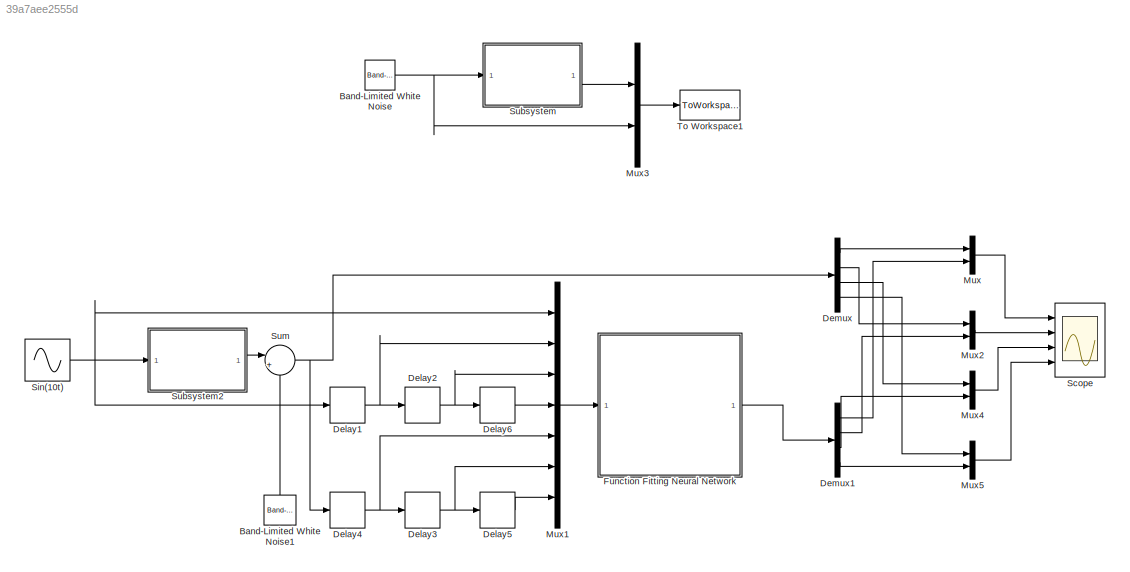
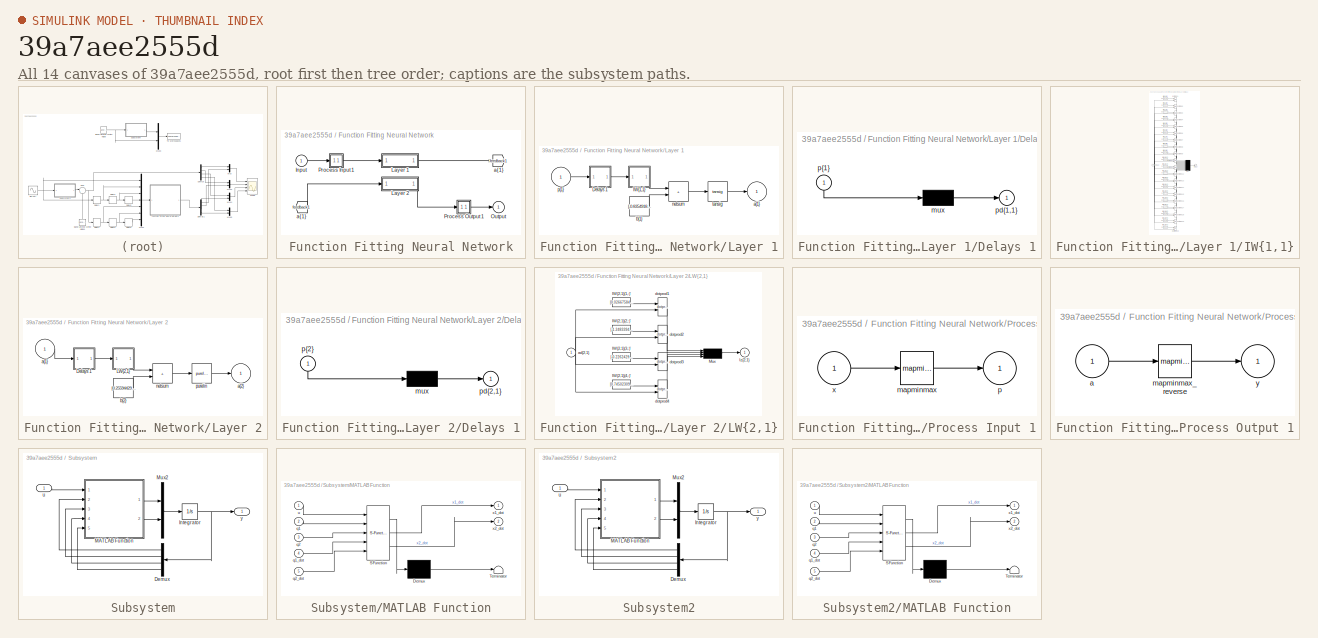
[diagram: thumbnail index - all 14 canvases of the model, root first then tree order]
MODEL slx_39a7aee2555d
KIND model
CONFIG AbsTol = auto
CONFIG EnableMultiTasking = off
CONFIG FixedStep = 0
CONFIG MaxStep = auto
CONFIG MinStep = auto
CONFIG RelTol = 1e-3
CONFIG SampleTimeConstraint = Unconstrained
CONFIG SolverName = VariableStepAuto
CONFIG StartTime = 0.0
CONFIG StopTime = 10
BLOCK [Reference] Band-Limited White Noise  REF=simulink/Sources/Band-Limited
White Noise
  Ports = [0, 1]
  SourceBlock = simulink/Sources/Band-Limited\nWhite Noise
  SourceProductBaseCode = SL
  SourceType = Band-Limited White Noise.
BLOCK [Reference] Band-Limited White Noise1  REF=simulink/Sources/Band-Limited
White Noise
  NameLocation = right
  Ports = [0, 1]
  SourceBlock = simulink/Sources/Band-Limited\nWhite Noise
  SourceProductBaseCode = SL
  SourceType = Band-Limited White Noise.
BLOCK [Delay] Delay1
  DelayLength = 1
  InitialCondition = 0
  InputPortMap = u0
  Ports = [1, 1]
BLOCK [Delay] Delay2
  DelayLength = 1
  InitialCondition = 0
  InputPortMap = u0
  Ports = [1, 1]
BLOCK [Delay] Delay3
  DelayLength = 1
  InitialCondition = 0
  InputPortMap = u0
  Ports = [1, 1]
BLOCK [Delay] Delay4
  DelayLength = 1
  InitialCondition = 0
  InputPortMap = u0
  Ports = [1, 1]
BLOCK [Delay] Delay5
  DelayLength = 1
  InitialCondition = 0
  InputPortMap = u0
  Ports = [1, 1]
BLOCK [Delay] Delay6
  DelayLength = 1
  InitialCondition = 0
  InputPortMap = u0
  Ports = [1, 1]
BLOCK [Demux] Demux
  Ports = [1, 4]
BLOCK [Demux] Demux1
  Ports = [1, 4]
BLOCK [SubSystem] Function Fitting Neural Network
  Ports = [1, 1]
  RequestExecContextInheritance = off
BLOCK [From] Function Fitting Neural Network/ a{1} 
  GotoTag = feedback1
BLOCK [Inport] Function Fitting Neural Network/Input
  PortDimensions = 16
BLOCK [SubSystem] Function Fitting Neural Network/Layer 1
  Ports = [1, 1]
  RequestExecContextInheritance = off
BLOCK [SubSystem] Function Fitting Neural Network/Layer 1/Delays 1
  Ports = [1, 1]
  RequestExecContextInheritance = off
BLOCK [Mux] Function Fitting Neural Network/Layer 1/Delays 1/mux
  Inputs = 1
  Ports = [1, 1]
BLOCK [Outport] Function Fitting Neural Network/Layer 1/Delays 1/pd{1,1}
BLOCK [Inport] Function Fitting Neural Network/Layer 1/Delays 1/p{1}
  NameLocation = left
  PortDimensions = 16
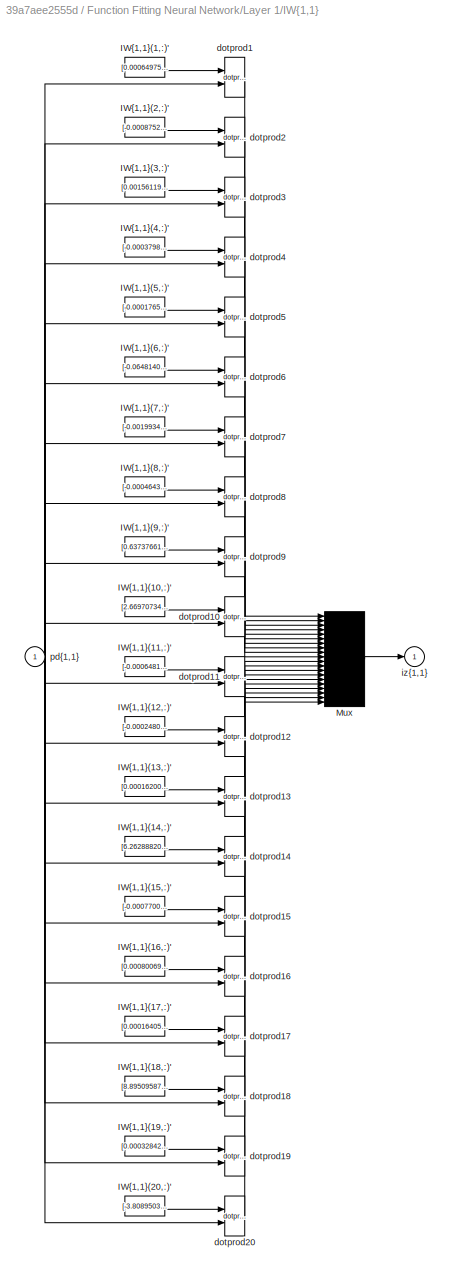
BLOCK [SubSystem] Function Fitting Neural Network/Layer 1/IW{1,1}
  Ports = [1, 1]
  RequestExecContextInheritance = off
BLOCK [Constant] Function Fitting Neural Network/Layer 1/IW{1,1}/IW{1,1}(1,:)'
  Value = [0.0006497595962778571383744452560904392157681286334991455078125;-4.14681874647082770080248892430319074264843948185443878173828125e-05;-0.000117323732129381670869806841839277922190376557409763336181640625;-0.00081712479590169829861412420513033794122748076915740966796875;0.02054128798901501407048186820247792638838291168212890625;-0.222381987091993471583606378771946765482425689697265625;-0.083519442...<+565ch>
BLOCK [Constant] Function Fitting Neural Network/Layer 1/IW{1,1}/IW{1,1}(10,:)'
  Value = [2.669707345365600827829556662695864588386029936373233795166015625e-05;6.163721756815836064040403652342092755134217441082000732421875e-05;0.00085904376332920592308772800294036642299033701419830322265625;-0.000748848611049175217659057413044365603127516806125640869140625;-0.64749101968490607728057284475653432309627532958984375;0.15628981793171414782506190022104419767856597900390625;0.413684876475788...<+554ch>
BLOCK [Constant] Function Fitting Neural Network/Layer 1/IW{1,1}/IW{1,1}(11,:)'
  Value = [-0.000648121461776643707948519779193929934990592300891876220703125;0.000318543579510111897479252007769900956191122531890869140625;0.00125256239143849818461207146214064778177998960018157958984375;-0.00020996056844432974962562366005869307628017850220203399658203125;-0.455149028189702098412539044147706590592861175537109375;0.0192023790503516693373153856327917310409247875213623046875;-0.2020906509395...<+559ch>
BLOCK [Constant] Function Fitting Neural Network/Layer 1/IW{1,1}/IW{1,1}(12,:)'
  Value = [-0.0002480378412450206355131798741098236860125325620174407958984375;-0.00020751750405047168887735786757531286639277823269367218017578125;-0.00018989495924129386737223834646925979541265405714511871337890625;0.00034571509970268113516589369993425862048752605915069580078125;-0.11481098550833705729257161465284298174083232879638671875;-0.480672832578880993015246758659486658871173858642578125;0.20050003...<+573ch>
BLOCK [Constant] Function Fitting Neural Network/Layer 1/IW{1,1}/IW{1,1}(13,:)'
  Value = [0.00016200095803150493778931051647163030793308280408382415771484375;0.0003105684530270226323574178639574938642908819019794464111328125;0.000122863321462266385057648943046615386265330016613006591796875;-0.00124550561041928786569499276737360560218803584575653076171875;-0.1692623394344288378920992954590474255383014678955078125;-0.2970496022290927129461124422959983348846435546875;-0.06714709216879935...<+557ch>
BLOCK [Constant] Function Fitting Neural Network/Layer 1/IW{1,1}/IW{1,1}(14,:)'
  Value = [6.26288820319030928827908066836016587330959737300872802734375e-05;0.0003576643112834073582988192452347675498458556830883026123046875;-5.51893240529009778132414620888113176988554187119007110595703125e-05;-8.75221609081757064008133539800837752409279346466064453125e-05;0.779963663071746804433814759249798953533172607421875;0.2936522481223595715249530258006416261196136474609375;-0.41823886804848114939...<+560ch>
BLOCK [Constant] Function Fitting Neural Network/Layer 1/IW{1,1}/IW{1,1}(15,:)'
  Value = [-0.000770044701256342926758147182653146955999545753002166748046875;-0.000121153238827784843177626239452138179331086575984954833984375;0.000962624329641622732307848497868008053046651184558868408203125;0.001924798690870832031107884318998912931419909000396728515625;1.1900904568608223765835418817005120217800140380859375;-0.1664802091736500011531774134709849022328853607177734375;-0.6876821267603886456...<+548ch>
BLOCK [Constant] Function Fitting Neural Network/Layer 1/IW{1,1}/IW{1,1}(16,:)'
  Value = [0.000800695062533548682602579926737007554038427770137786865234375;-0.00045715830620634352772502229100837212172336876392364501953125;0.0003268933807610846921203051618221024909871630370616912841796875;-5.997773816073786860326999548220783253782428801059722900390625e-05;-0.33597739810910909330488038904150016605854034423828125;0.267747073382606559643903665346442721784114837646484375;-0.576545631646478...<+559ch>
BLOCK [Constant] Function Fitting Neural Network/Layer 1/IW{1,1}/IW{1,1}(17,:)'
  Value = [0.00016405049724810857707246736225670247222296893596649169921875;-0.0003472694094526647379771178147933596846996806561946868896484375;-0.000858663939336835814637727271048106558737345039844512939453125;1.745347316646612574326906386357194378433632664382457733154296875e-05;-1.669618756525871550167039458756335079669952392578125;-0.65396558716076125250538098043762147426605224609375;1.162072557652358950...<+548ch>
BLOCK [Constant] Function Fitting Neural Network/Layer 1/IW{1,1}/IW{1,1}(18,:)'
  Value = [8.8950958795552698154564252863707451979280449450016021728515625e-05;0.00026509341560794594423733361310269174282439053058624267578125;-0.000403248729956397016470359684348068185499869287014007568359375;0.00142578383093951046971248342032367872889153659343719482421875;-1.3708659490516870160803364342427812516689300537109375;0.10422716158509580386404280716305947862565517425537109375;0.15934685237078879...<+557ch>
BLOCK [Constant] Function Fitting Neural Network/Layer 1/IW{1,1}/IW{1,1}(19,:)'
  Value = [0.000328422867463017630583477224348598610959015786647796630859375;-0.0004080776202633589204611663792121589722228236496448516845703125;-0.000170019236093398398192155784869328272179700434207916259765625;0.00015494386029386069607120812730016723435255698859691619873046875;-0.2088588702647231343245692869459162466228008270263671875;-0.55302265726755439612105647029238753020763397216796875;-0.02594666573...<+566ch>
BLOCK [Constant] Function Fitting Neural Network/Layer 1/IW{1,1}/IW{1,1}(2,:)'
  Value = [-0.000875290755914965852395315248912766037392430007457733154296875;0.0010655678861198150143840823744767476455308496952056884765625;0.002486375754704956385354730485914842574857175350189208984375;0.0028589814329637295610420100189230652176775038242340087890625;0.465150962009530155594205780289485119283199310302734375;0.0842845297424358597115912061781273223459720611572265625;0.463231932560459025438603...<+546ch>
BLOCK [Constant] Function Fitting Neural Network/Layer 1/IW{1,1}/IW{1,1}(20,:)'
  Value = [-3.80895037760419334920032607971762672605109401047229766845703125e-05;-0.000714089892746204435436396806835546158254146575927734375;0.000678670392179360850749836320261465516523458063602447509765625;-0.00141509602233738239658589197489391153794713318347930908203125;-0.033249752747824157239620035397820174694061279296875;0.051727387772988277225838515960276708938181400299072265625;-0.736224880063922837...<+550ch>
BLOCK [Constant] Function Fitting Neural Network/Layer 1/IW{1,1}/IW{1,1}(3,:)'
  Value = [0.00156119571766490518142933563439100907999090850353240966796875;0.0002498858016574074321532183962091266948846168816089630126953125;0.000627619329181742136199162462872891410370357334613800048828125;-0.0003498051026960557227489523324237552515114657580852508544921875;0.29474207246474259935808959198766387999057769775390625;-0.360346348681270856051384043894358910620212554931640625;-0.9545396083794313...<+559ch>
BLOCK [Constant] Function Fitting Neural Network/Layer 1/IW{1,1}/IW{1,1}(4,:)'
  Value = [-0.0003798337715813563633844573974585046016727574169635772705078125;-0.000249441646736257849337192737948498688638210296630859375;1.6775931835901871703488341669441297199227847158908843994140625e-05;0.0001929638547644634623441650678188352685538120567798614501953125;0.334971409197415581626700031847576610743999481201171875;0.1355361321430451349012713535557850264012813568115234375;0.122106224542132657...<+555ch>
BLOCK [Constant] Function Fitting Neural Network/Layer 1/IW{1,1}/IW{1,1}(5,:)'
  Value = [-0.00017655897202761079885224848595726143685169517993927001953125;-0.00055864550376499909171978952571180343511514365673065185546875;0.000973306377957160423312898966941020262311212718486785888671875;0.0002499754957638698348205974486546665502828545868396759033203125;0.32236641758659312362311766264610923826694488525390625;-0.345592372580953488547805818598135374486446380615234375;0.098450016815530297...<+553ch>
BLOCK [Constant] Function Fitting Neural Network/Layer 1/IW{1,1}/IW{1,1}(6,:)'
  Value = [-0.06481402597656064912268192301780800335109233856201171875;-0.004092143680449526928211145815339477849192917346954345703125;-0.0012426757535115950763227044006953292409889400005340576171875;0.03962134355508217797847692054347135126590728759765625;-0.5376738120341120197309692230192013084888458251953125;0.2078897200943762568758899078602553345263004302978515625;0.46027412491527086579878869088133797049...<+529ch>
BLOCK [Constant] Function Fitting Neural Network/Layer 1/IW{1,1}/IW{1,1}(7,:)'
  Value = [-0.0019934277716382891622315387536445996374823153018951416015625;0.001158125043902765403946997224693404859863221645355224609375;0.00075377527919244058200731739560751520912162959575653076171875;0.002584609389924420741468935602824785746634006500244140625;-0.13675443197164816044875124134705401957035064697265625;-0.2045602257931095346865646433798247016966342926025390625;-0.743161918084098260806058533...<+539ch>
BLOCK [Constant] Function Fitting Neural Network/Layer 1/IW{1,1}/IW{1,1}(8,:)'
  Value = [-0.000464315012158815487719465409099939279258251190185546875;-5.50433352576753281613052004583863663356169126927852630615234375e-05;3.54743980116722037077177376307446365899522788822650909423828125e-05;0.000599036242651901557933202813188700019964016973972320556640625;-0.1665176304098157367139521056742523796856403350830078125;0.1723296329127926018731642443526652641594409942626953125;0.11432769343818...<+575ch>
BLOCK [Constant] Function Fitting Neural Network/Layer 1/IW{1,1}/IW{1,1}(9,:)'
  Value = [0.63737661830385816674748866716981865465641021728515625;0.170284290525173409580617089886800386011600494384765625;0.279716443623468868917569807308609597384929656982421875;-0.38612799402853792418710554557037539780139923095703125;-0.25450926270260032513448322788462974131107330322265625;0.64598996345771386717871109794941730797290802001953125;-0.11904632672822124117573139301384799182415008544921875;0....<+512ch>
BLOCK [Mux] Function Fitting Neural Network/Layer 1/IW{1,1}/Mux
  Inputs = 20
  Ports = [20, 1]
BLOCK [Reference] Function Fitting Neural Network/Layer 1/IW{1,1}/dotprod1  REF=neural/Weight Functions/dotprod
  Ports = [2, 1]
  SourceBlock = neural/Weight Functions/dotprod
  SourceProductBaseCode = NN
  SourceType = DOTPROD
BLOCK [Reference] Function Fitting Neural Network/Layer 1/IW{1,1}/dotprod10  REF=neural/Weight Functions/dotprod
  Ports = [2, 1]
  SourceBlock = neural/Weight Functions/dotprod
  SourceProductBaseCode = NN
  SourceType = DOTPROD
BLOCK [Reference] Function Fitting Neural Network/Layer 1/IW{1,1}/dotprod11  REF=neural/Weight Functions/dotprod
  Ports = [2, 1]
  SourceBlock = neural/Weight Functions/dotprod
  SourceProductBaseCode = NN
  SourceType = DOTPROD
BLOCK [Reference] Function Fitting Neural Network/Layer 1/IW{1,1}/dotprod12  REF=neural/Weight Functions/dotprod
  Ports = [2, 1]
  SourceBlock = neural/Weight Functions/dotprod
  SourceProductBaseCode = NN
  SourceType = DOTPROD
BLOCK [Reference] Function Fitting Neural Network/Layer 1/IW{1,1}/dotprod13  REF=neural/Weight Functions/dotprod
  Ports = [2, 1]
  SourceBlock = neural/Weight Functions/dotprod
  SourceProductBaseCode = NN
  SourceType = DOTPROD
BLOCK [Reference] Function Fitting Neural Network/Layer 1/IW{1,1}/dotprod14  REF=neural/Weight Functions/dotprod
  Ports = [2, 1]
  SourceBlock = neural/Weight Functions/dotprod
  SourceProductBaseCode = NN
  SourceType = DOTPROD
BLOCK [Reference] Function Fitting Neural Network/Layer 1/IW{1,1}/dotprod15  REF=neural/Weight Functions/dotprod
  Ports = [2, 1]
  SourceBlock = neural/Weight Functions/dotprod
  SourceProductBaseCode = NN
  SourceType = DOTPROD
BLOCK [Reference] Function Fitting Neural Network/Layer 1/IW{1,1}/dotprod16  REF=neural/Weight Functions/dotprod
  Ports = [2, 1]
  SourceBlock = neural/Weight Functions/dotprod
  SourceProductBaseCode = NN
  SourceType = DOTPROD
BLOCK [Reference] Function Fitting Neural Network/Layer 1/IW{1,1}/dotprod17  REF=neural/Weight Functions/dotprod
  Ports = [2, 1]
  SourceBlock = neural/Weight Functions/dotprod
  SourceProductBaseCode = NN
  SourceType = DOTPROD
BLOCK [Reference] Function Fitting Neural Network/Layer 1/IW{1,1}/dotprod18  REF=neural/Weight Functions/dotprod
  Ports = [2, 1]
  SourceBlock = neural/Weight Functions/dotprod
  SourceProductBaseCode = NN
  SourceType = DOTPROD
BLOCK [Reference] Function Fitting Neural Network/Layer 1/IW{1,1}/dotprod19  REF=neural/Weight Functions/dotprod
  Ports = [2, 1]
  SourceBlock = neural/Weight Functions/dotprod
  SourceProductBaseCode = NN
  SourceType = DOTPROD
BLOCK [Reference] Function Fitting Neural Network/Layer 1/IW{1,1}/dotprod2  REF=neural/Weight Functions/dotprod
  Ports = [2, 1]
  SourceBlock = neural/Weight Functions/dotprod
  SourceProductBaseCode = NN
  SourceType = DOTPROD
BLOCK [Reference] Function Fitting Neural Network/Layer 1/IW{1,1}/dotprod20  REF=neural/Weight Functions/dotprod
  Ports = [2, 1]
  SourceBlock = neural/Weight Functions/dotprod
  SourceProductBaseCode = NN
  SourceType = DOTPROD
BLOCK [Reference] Function Fitting Neural Network/Layer 1/IW{1,1}/dotprod3  REF=neural/Weight Functions/dotprod
  Ports = [2, 1]
  SourceBlock = neural/Weight Functions/dotprod
  SourceProductBaseCode = NN
  SourceType = DOTPROD
BLOCK [Reference] Function Fitting Neural Network/Layer 1/IW{1,1}/dotprod4  REF=neural/Weight Functions/dotprod
  Ports = [2, 1]
  SourceBlock = neural/Weight Functions/dotprod
  SourceProductBaseCode = NN
  SourceType = DOTPROD
BLOCK [Reference] Function Fitting Neural Network/Layer 1/IW{1,1}/dotprod5  REF=neural/Weight Functions/dotprod
  Ports = [2, 1]
  SourceBlock = neural/Weight Functions/dotprod
  SourceProductBaseCode = NN
  SourceType = DOTPROD
BLOCK [Reference] Function Fitting Neural Network/Layer 1/IW{1,1}/dotprod6  REF=neural/Weight Functions/dotprod
  Ports = [2, 1]
  SourceBlock = neural/Weight Functions/dotprod
  SourceProductBaseCode = NN
  SourceType = DOTPROD
BLOCK [Reference] Function Fitting Neural Network/Layer 1/IW{1,1}/dotprod7  REF=neural/Weight Functions/dotprod
  Ports = [2, 1]
  SourceBlock = neural/Weight Functions/dotprod
  SourceProductBaseCode = NN
  SourceType = DOTPROD
BLOCK [Reference] Function Fitting Neural Network/Layer 1/IW{1,1}/dotprod8  REF=neural/Weight Functions/dotprod
  Ports = [2, 1]
  SourceBlock = neural/Weight Functions/dotprod
  SourceProductBaseCode = NN
  SourceType = DOTPROD
BLOCK [Reference] Function Fitting Neural Network/Layer 1/IW{1,1}/dotprod9  REF=neural/Weight Functions/dotprod
  Ports = [2, 1]
  SourceBlock = neural/Weight Functions/dotprod
  SourceProductBaseCode = NN
  SourceType = DOTPROD
BLOCK [Outport] Function Fitting Neural Network/Layer 1/IW{1,1}/iz{1,1}
BLOCK [Inport] Function Fitting Neural Network/Layer 1/IW{1,1}/pd{1,1}
  PortDimensions = 16
BLOCK [Outport] Function Fitting Neural Network/Layer 1/a{1}
  InitialOutput = [0;0;0;0;0;0;0;0;0;0;0;0;0;0;0;0;0;0;0;0]
BLOCK [Constant] Function Fitting Neural Network/Layer 1/b{1}
  Value = [-0.83549180943357848061481263357563875615596771240234375;-1.8201004242661380505552415343117900192737579345703125;0.92350959078641003952014898459310643374919891357421875;-0.92781891823089457371764865456498228013515472412109375;-0.98835326541109835840615005508880130946636199951171875;0.94440562253181947749425262372824363410472869873046875;-0.019994288787829644221671898662862076889723539352416992187...<+740ch>
BLOCK [Sum] Function Fitting Neural Network/Layer 1/netsum
  IconShape = rectangular
  InputSameDT = on
  Inputs = 2
  OutDataTypeStr = Inherit: Same as first input
  Ports = [2, 1]
  SaturateOnIntegerOverflow = on
BLOCK [Inport] Function Fitting Neural Network/Layer 1/p{1}
  PortDimensions = 16
BLOCK [Reference] Function Fitting Neural Network/Layer 1/tansig  REF=neural/Transfer Functions/tansig
  Ports = [1, 1]
  SourceBlock = neural/Transfer Functions/tansig
  SourceProductBaseCode = NN
  SourceType = TANSIG
BLOCK [SubSystem] Function Fitting Neural Network/Layer 2
  Ports = [1, 1]
  RequestExecContextInheritance = off
BLOCK [SubSystem] Function Fitting Neural Network/Layer 2/Delays 1
  Ports = [1, 1]
  RequestExecContextInheritance = off
BLOCK [Mux] Function Fitting Neural Network/Layer 2/Delays 1/mux
  Inputs = 1
  Ports = [1, 1]
BLOCK [Outport] Function Fitting Neural Network/Layer 2/Delays 1/pd{2,1}
BLOCK [Inport] Function Fitting Neural Network/Layer 2/Delays 1/p{2}
  NameLocation = left
  PortDimensions = 20
BLOCK [SubSystem] Function Fitting Neural Network/Layer 2/LW{2,1}
  Ports = [1, 1]
  RequestExecContextInheritance = off
BLOCK [Constant] Function Fitting Neural Network/Layer 2/LW{2,1}/IW{2,1}(1,:)'
  Value = [0.026675845218452065576997256357572041451930999755859375;-0.10126845530414048390799308663190458901226520538330078125;-0.0250774330407973582157676872839147108606994152069091796875;-0.71488803256194077828666877394425682723522186279296875;0.319557664662871498961749239242635667324066162109375;-0.00102440618500659256888407622199110846850089728832244873046875;0.37006210555686358532057056436315178871154...<+762ch>
BLOCK [Constant] Function Fitting Neural Network/Layer 2/LW{2,1}/IW{2,1}(2,:)'
  Value = [-1.2483394601278667845889458476449362933635711669921875;0.061577600872825259681331289129957440309226512908935546875;-0.037178833821612973509207478173266281373798847198486328125;-0.2347994466474962182989116854514577426016330718994140625;-0.261513705559294262759095772707951255142688751220703125;0.000712107873674910321799835788425525606726296246051788330078125;-0.468534969581737126276266280910931527...<+772ch>
BLOCK [Constant] Function Fitting Neural Network/Layer 2/LW{2,1}/IW{2,1}(3,:)'
  Value = [-0.22624298378456375591127880397834815084934234619140625;0.036553569359838035401910616428722278214991092681884765625;0.09796419631980675390980906058757682330906391143798828125;0.3396400712636642449382406994118355214595794677734375;0.039187806194914076574065120439627207815647125244140625;-0.0017265489101011767709981103990912743029184639453887939453125;0.11679739520478461811681114568273187614977359...<+756ch>
BLOCK [Constant] Function Fitting Neural Network/Layer 2/LW{2,1}/IW{2,1}(4,:)'
  Value = [0.74502309863869131678626445136615075170993804931640625;0.258051567249830193784276843871339224278926849365234375;-0.2392513132406336173740868389359093271195888519287109375;-1.4030763609083101162156026475713588297367095947265625;-0.9475939854598995903955938047147355973720550537109375;0.00177846965778486539207225991532368425396271049976348876953125;1.172782755985602776149789860937744379043579101562...<+733ch>
BLOCK [Mux] Function Fitting Neural Network/Layer 2/LW{2,1}/Mux
  Ports = [4, 1]
BLOCK [Inport] Function Fitting Neural Network/Layer 2/LW{2,1}/ad{2,1}
  PortDimensions = 20
BLOCK [Reference] Function Fitting Neural Network/Layer 2/LW{2,1}/dotprod1  REF=neural/Weight Functions/dotprod
  Ports = [2, 1]
  SourceBlock = neural/Weight Functions/dotprod
  SourceProductBaseCode = NN
  SourceType = DOTPROD
BLOCK [Reference] Function Fitting Neural Network/Layer 2/LW{2,1}/dotprod2  REF=neural/Weight Functions/dotprod
  Ports = [2, 1]
  SourceBlock = neural/Weight Functions/dotprod
  SourceProductBaseCode = NN
  SourceType = DOTPROD
BLOCK [Reference] Function Fitting Neural Network/Layer 2/LW{2,1}/dotprod3  REF=neural/Weight Functions/dotprod
  Ports = [2, 1]
  SourceBlock = neural/Weight Functions/dotprod
  SourceProductBaseCode = NN
  SourceType = DOTPROD
BLOCK [Reference] Function Fitting Neural Network/Layer 2/LW{2,1}/dotprod4  REF=neural/Weight Functions/dotprod
  Ports = [2, 1]
  SourceBlock = neural/Weight Functions/dotprod
  SourceProductBaseCode = NN
  SourceType = DOTPROD
BLOCK [Outport] Function Fitting Neural Network/Layer 2/LW{2,1}/lz{2,1}
BLOCK [Inport] Function Fitting Neural Network/Layer 2/a{1} 
  PortDimensions = 20
BLOCK [Outport] Function Fitting Neural Network/Layer 2/a{2}
  InitialOutput = [0;0;0;0]
BLOCK [Constant] Function Fitting Neural Network/Layer 2/b{2}
  Value = [0.25594429829992548786066208776901476085186004638671875;0.10194009318987629075792256116983480751514434814453125;0.55700857727010311126747410526149906218051910400390625;0.1142790231718998905652284747702651657164096832275390625]
BLOCK [Sum] Function Fitting Neural Network/Layer 2/netsum
  IconShape = rectangular
  InputSameDT = on
  Inputs = 2
  OutDataTypeStr = Inherit: Same as first input
  Ports = [2, 1]
  SaturateOnIntegerOverflow = on
BLOCK [Reference] Function Fitting Neural Network/Layer 2/purelin  REF=neural/Transfer Functions/purelin
  Ports = [1, 1]
  SourceBlock = neural/Transfer Functions/purelin
  SourceProductBaseCode = NN
  SourceType = PURELIN
BLOCK [Outport] Function Fitting Neural Network/Output
  InitialOutput = [0;0;0;0]
BLOCK [SubSystem] Function Fitting Neural Network/Process Input 1
  Ports = [1, 1]
  RequestExecContextInheritance = off
BLOCK [Reference] Function Fitting Neural Network/Process Input 1/mapminmax  REF=neural/Processing Functions/mapminmax
  Ports = [1, 1]
  SourceBlock = neural/Processing Functions/mapminmax
  SourceProductBaseCode = NN
  SourceType = MAPMINMAX Preprocess
BLOCK [Outport] Function Fitting Neural Network/Process Input 1/p
  PortDimensions = 16
BLOCK [Inport] Function Fitting Neural Network/Process Input 1/x
  PortDimensions = 16
BLOCK [SubSystem] Function Fitting Neural Network/Process Output 1
  Ports = [1, 1]
  RequestExecContextInheritance = off
BLOCK [Inport] Function Fitting Neural Network/Process Output 1/a
  PortDimensions = 4
BLOCK [Reference] Function Fitting Neural Network/Process Output 1/mapminmax_reverse  REF=neural/Processing Functions/mapminmax_reverse
  Ports = [1, 1]
  SourceBlock = neural/Processing Functions/mapminmax_reverse
  SourceProductBaseCode = NN
  SourceType = MAPMINMAX Reverse Process
BLOCK [Outport] Function Fitting Neural Network/Process Output 1/y
  PortDimensions = 4
BLOCK [Goto] Function Fitting Neural Network/a{1}
  GotoTag = feedback1
BLOCK [Mux] Mux
  DisplayOption = bar
  Inputs = 2
  Ports = [2, 1]
BLOCK [Mux] Mux1
  DisplayOption = bar
  Inputs = 7
  Ports = [7, 1]
BLOCK [Mux] Mux2
  DisplayOption = bar
  Inputs = 2
  Ports = [2, 1]
BLOCK [Mux] Mux3
  DisplayOption = bar
  Inputs = 2
  Ports = [2, 1]
BLOCK [Mux] Mux4
  DisplayOption = bar
  Inputs = 2
  Ports = [2, 1]
BLOCK [Mux] Mux5
  DisplayOption = bar
  Inputs = 2
  Ports = [2, 1]
BLOCK [Scope] Scope
  Floating = off
  NumInputPorts = 4
  Ports = [4]
  ScopeSpecificationString = Simulink.scopes.TimeScopeBlockCfg('CurrentConfiguration', extmgr.ConfigurationSet(extmgr.Configuration('Core','General UI',true),extmgr.Configuration('Core','Source UI',true),extmgr.Configuration('Sources','WiredSimulink',true),extmgr.Configuration('Visuals','Time Domain',true,'SerializedDisplays',{struct('MinYLimReal','-3.51457','MaxYLimReal','0.391','YLabelReal','','MinYLimMag','0.00000','MaxYLi...<+3675ch>
BLOCK [Sin] Sin(10t)
  Frequency = 10
  Ports = [0, 1]
  SampleTime = 0
BLOCK [SubSystem] Subsystem
  Ports = [1, 1]
  RequestExecContextInheritance = off
BLOCK [Demux] Subsystem/Demux
  Ports = [1, 4]
BLOCK [Integrator] Subsystem/Integrator
  InitialCondition = [0 0 0 0]
  Ports = [1, 1]
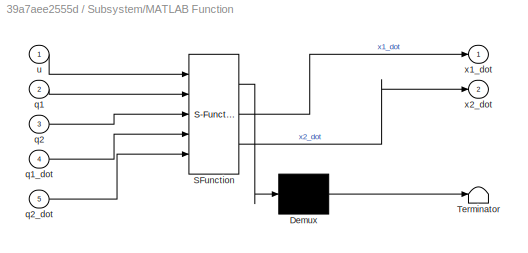
BLOCK [SubSystem] Subsystem/MATLAB Function
  ErrorFcn = Stateflow.Translate.translate
  PermitHierarchicalResolution = ExplicitOnly
  Ports = [5, 2]
  RequestExecContextInheritance = off
  SFBlockType = MATLAB Function
  TreatAsAtomicUnit = on
BLOCK [Demux] Subsystem/MATLAB Function/ Demux 
  Outputs = 1
  Ports = [1, 1]
BLOCK [S-Function] Subsystem/MATLAB Function/ SFunction 
  EnableBusSupport = on
  FunctionName = sf_sfun
  PortCounts = [5 3]
  Ports = [5, 3]
  SFcnIsStateOwnerBlock = off
  SFunctionDeploymentMode = off
  Tag = Stateflow S-Function 2
BLOCK [Terminator] Subsystem/MATLAB Function/ Terminator 
BLOCK [Inport] Subsystem/MATLAB Function/q1
  Port = 2
BLOCK [Inport] Subsystem/MATLAB Function/q1_dot
  Port = 4
BLOCK [Inport] Subsystem/MATLAB Function/q2
  Port = 3
BLOCK [Inport] Subsystem/MATLAB Function/q2_dot
  Port = 5
BLOCK [Inport] Subsystem/MATLAB Function/u
BLOCK [Outport] Subsystem/MATLAB Function/x1_dot
BLOCK [Outport] Subsystem/MATLAB Function/x2_dot
  Port = 2
BLOCK [Mux] Subsystem/Mux2
  DisplayOption = bar
  Inputs = 2
  Ports = [2, 1]
BLOCK [Inport] Subsystem/u
BLOCK [Outport] Subsystem/y
BLOCK [SubSystem] Subsystem2
  Ports = [1, 1]
  RequestExecContextInheritance = off
BLOCK [Demux] Subsystem2/Demux
  Ports = [1, 4]
BLOCK [Integrator] Subsystem2/Integrator
  InitialCondition = [0 0 0 0]
  Ports = [1, 1]
BLOCK [SubSystem] Subsystem2/MATLAB Function
  ErrorFcn = Stateflow.Translate.translate
  PermitHierarchicalResolution = ExplicitOnly
  Ports = [5, 2]
  RequestExecContextInheritance = off
  SFBlockType = MATLAB Function
  TreatAsAtomicUnit = on
BLOCK [Demux] Subsystem2/MATLAB Function/ Demux 
  Outputs = 1
  Ports = [1, 1]
BLOCK [S-Function] Subsystem2/MATLAB Function/ SFunction 
  EnableBusSupport = on
  FunctionName = sf_sfun
  PortCounts = [5 3]
  Ports = [5, 3]
  SFcnIsStateOwnerBlock = off
  SFunctionDeploymentMode = off
  Tag = Stateflow S-Function 3
BLOCK [Terminator] Subsystem2/MATLAB Function/ Terminator 
BLOCK [Inport] Subsystem2/MATLAB Function/q1
  Port = 2
BLOCK [Inport] Subsystem2/MATLAB Function/q1_dot
  Port = 4
BLOCK [Inport] Subsystem2/MATLAB Function/q2
  Port = 3
BLOCK [Inport] Subsystem2/MATLAB Function/q2_dot
  Port = 5
BLOCK [Inport] Subsystem2/MATLAB Function/u
BLOCK [Outport] Subsystem2/MATLAB Function/x1_dot
BLOCK [Outport] Subsystem2/MATLAB Function/x2_dot
  Port = 2
BLOCK [Mux] Subsystem2/Mux2
  DisplayOption = bar
  Inputs = 2
  Ports = [2, 1]
BLOCK [Inport] Subsystem2/u
BLOCK [Outport] Subsystem2/y
BLOCK [Sum] Sum
  Inputs = |++
  Ports = [2, 1]
BLOCK [ToWorkspace] To Workspace1
  FixptAsFi = on
  MaxDataPoints = inf
  Ports = [1]
  SampleTime = -1
  SaveFormat = Timeseries
  VariableName = simout
LINE Band-Limited White Noise1:1 -> Sum:2
NET Band-Limited White Noise:1 -> Mux3:2, Subsystem:1
NET Delay1:1 -> Delay2:1, Mux1:2
NET Delay2:1 -> Delay6:1, Mux1:3
NET Delay3:1 -> Delay5:1, Mux1:6
NET Delay4:1 -> Delay3:1, Mux1:5
LINE Delay5:1 -> Mux1:7
LINE Delay6:1 -> Mux1:4
LINE Demux1:1 -> Mux:2
LINE Demux1:2 -> Mux2:2
LINE Demux1:3 -> Mux4:2
LINE Demux1:4 -> Mux5:2
LINE Demux:1 -> Mux:1
LINE Demux:2 -> Mux2:1
LINE Demux:3 -> Mux4:1
LINE Demux:4 -> Mux5:1
LINE Function Fitting Neural Network/ a{1} :1 -> Function Fitting Neural Network/Layer 2:1
LINE Function Fitting Neural Network/Input:1 -> Function Fitting Neural Network/Process Input 1:1
LINE Function Fitting Neural Network/Layer 1/Delays 1/mux:1 -> Function Fitting Neural Network/Layer 1/Delays 1/pd{1,1}:1
LINE Function Fitting Neural Network/Layer 1/Delays 1/p{1}:1 -> Function Fitting Neural Network/Layer 1/Delays 1/mux:1
LINE Function Fitting Neural Network/Layer 1/Delays 1:1 -> Function Fitting Neural Network/Layer 1/IW{1,1}:1
LINE Function Fitting Neural Network/Layer 1/IW{1,1}/IW{1,1}(1,:)':1 -> Function Fitting Neural Network/Layer 1/IW{1,1}/dotprod1:1
LINE Function Fitting Neural Network/Layer 1/IW{1,1}/IW{1,1}(10,:)':1 -> Function Fitting Neural Network/Layer 1/IW{1,1}/dotprod10:1
LINE Function Fitting Neural Network/Layer 1/IW{1,1}/IW{1,1}(11,:)':1 -> Function Fitting Neural Network/Layer 1/IW{1,1}/dotprod11:1
LINE Function Fitting Neural Network/Layer 1/IW{1,1}/IW{1,1}(12,:)':1 -> Function Fitting Neural Network/Layer 1/IW{1,1}/dotprod12:1
LINE Function Fitting Neural Network/Layer 1/IW{1,1}/IW{1,1}(13,:)':1 -> Function Fitting Neural Network/Layer 1/IW{1,1}/dotprod13:1
LINE Function Fitting Neural Network/Layer 1/IW{1,1}/IW{1,1}(14,:)':1 -> Function Fitting Neural Network/Layer 1/IW{1,1}/dotprod14:1
LINE Function Fitting Neural Network/Layer 1/IW{1,1}/IW{1,1}(15,:)':1 -> Function Fitting Neural Network/Layer 1/IW{1,1}/dotprod15:1
LINE Function Fitting Neural Network/Layer 1/IW{1,1}/IW{1,1}(16,:)':1 -> Function Fitting Neural Network/Layer 1/IW{1,1}/dotprod16:1
LINE Function Fitting Neural Network/Layer 1/IW{1,1}/IW{1,1}(17,:)':1 -> Function Fitting Neural Network/Layer 1/IW{1,1}/dotprod17:1
LINE Function Fitting Neural Network/Layer 1/IW{1,1}/IW{1,1}(18,:)':1 -> Function Fitting Neural Network/Layer 1/IW{1,1}/dotprod18:1
LINE Function Fitting Neural Network/Layer 1/IW{1,1}/IW{1,1}(19,:)':1 -> Function Fitting Neural Network/Layer 1/IW{1,1}/dotprod19:1
LINE Function Fitting Neural Network/Layer 1/IW{1,1}/IW{1,1}(2,:)':1 -> Function Fitting Neural Network/Layer 1/IW{1,1}/dotprod2:1
LINE Function Fitting Neural Network/Layer 1/IW{1,1}/IW{1,1}(20,:)':1 -> Function Fitting Neural Network/Layer 1/IW{1,1}/dotprod20:1
LINE Function Fitting Neural Network/Layer 1/IW{1,1}/IW{1,1}(3,:)':1 -> Function Fitting Neural Network/Layer 1/IW{1,1}/dotprod3:1
LINE Function Fitting Neural Network/Layer 1/IW{1,1}/IW{1,1}(4,:)':1 -> Function Fitting Neural Network/Layer 1/IW{1,1}/dotprod4:1
LINE Function Fitting Neural Network/Layer 1/IW{1,1}/IW{1,1}(5,:)':1 -> Function Fitting Neural Network/Layer 1/IW{1,1}/dotprod5:1
LINE Function Fitting Neural Network/Layer 1/IW{1,1}/IW{1,1}(6,:)':1 -> Function Fitting Neural Network/Layer 1/IW{1,1}/dotprod6:1
LINE Function Fitting Neural Network/Layer 1/IW{1,1}/IW{1,1}(7,:)':1 -> Function Fitting Neural Network/Layer 1/IW{1,1}/dotprod7:1
LINE Function Fitting Neural Network/Layer 1/IW{1,1}/IW{1,1}(8,:)':1 -> Function Fitting Neural Network/Layer 1/IW{1,1}/dotprod8:1
LINE Function Fitting Neural Network/Layer 1/IW{1,1}/IW{1,1}(9,:)':1 -> Function Fitting Neural Network/Layer 1/IW{1,1}/dotprod9:1
LINE Function Fitting Neural Network/Layer 1/IW{1,1}/Mux:1 -> Function Fitting Neural Network/Layer 1/IW{1,1}/iz{1,1}:1
LINE Function Fitting Neural Network/Layer 1/IW{1,1}/dotprod10:1 -> Function Fitting Neural Network/Layer 1/IW{1,1}/Mux:10
LINE Function Fitting Neural Network/Layer 1/IW{1,1}/dotprod11:1 -> Function Fitting Neural Network/Layer 1/IW{1,1}/Mux:11
LINE Function Fitting Neural Network/Layer 1/IW{1,1}/dotprod12:1 -> Function Fitting Neural Network/Layer 1/IW{1,1}/Mux:12
LINE Function Fitting Neural Network/Layer 1/IW{1,1}/dotprod13:1 -> Function Fitting Neural Network/Layer 1/IW{1,1}/Mux:13
LINE Function Fitting Neural Network/Layer 1/IW{1,1}/dotprod14:1 -> Function Fitting Neural Network/Layer 1/IW{1,1}/Mux:14
LINE Function Fitting Neural Network/Layer 1/IW{1,1}/dotprod15:1 -> Function Fitting Neural Network/Layer 1/IW{1,1}/Mux:15
LINE Function Fitting Neural Network/Layer 1/IW{1,1}/dotprod16:1 -> Function Fitting Neural Network/Layer 1/IW{1,1}/Mux:16
LINE Function Fitting Neural Network/Layer 1/IW{1,1}/dotprod17:1 -> Function Fitting Neural Network/Layer 1/IW{1,1}/Mux:17
LINE Function Fitting Neural Network/Layer 1/IW{1,1}/dotprod18:1 -> Function Fitting Neural Network/Layer 1/IW{1,1}/Mux:18
LINE Function Fitting Neural Network/Layer 1/IW{1,1}/dotprod19:1 -> Function Fitting Neural Network/Layer 1/IW{1,1}/Mux:19
LINE Function Fitting Neural Network/Layer 1/IW{1,1}/dotprod1:1 -> Function Fitting Neural Network/Layer 1/IW{1,1}/Mux:1
LINE Function Fitting Neural Network/Layer 1/IW{1,1}/dotprod20:1 -> Function Fitting Neural Network/Layer 1/IW{1,1}/Mux:20
LINE Function Fitting Neural Network/Layer 1/IW{1,1}/dotprod2:1 -> Function Fitting Neural Network/Layer 1/IW{1,1}/Mux:2
LINE Function Fitting Neural Network/Layer 1/IW{1,1}/dotprod3:1 -> Function Fitting Neural Network/Layer 1/IW{1,1}/Mux:3
LINE Function Fitting Neural Network/Layer 1/IW{1,1}/dotprod4:1 -> Function Fitting Neural Network/Layer 1/IW{1,1}/Mux:4
LINE Function Fitting Neural Network/Layer 1/IW{1,1}/dotprod5:1 -> Function Fitting Neural Network/Layer 1/IW{1,1}/Mux:5
LINE Function Fitting Neural Network/Layer 1/IW{1,1}/dotprod6:1 -> Function Fitting Neural Network/Layer 1/IW{1,1}/Mux:6
LINE Function Fitting Neural Network/Layer 1/IW{1,1}/dotprod7:1 -> Function Fitting Neural Network/Layer 1/IW{1,1}/Mux:7
LINE Function Fitting Neural Network/Layer 1/IW{1,1}/dotprod8:1 -> Function Fitting Neural Network/Layer 1/IW{1,1}/Mux:8
LINE Function Fitting Neural Network/Layer 1/IW{1,1}/dotprod9:1 -> Function Fitting Neural Network/Layer 1/IW{1,1}/Mux:9
NET Function Fitting Neural Network/Layer 1/IW{1,1}/pd{1,1}:1 -> Function Fitting Neural Network/Layer 1/IW{1,1}/dotprod10:2, Function Fitting Neural Network/Layer 1/IW{1,1}/dotprod11:2, Function Fitting Neural Network/Layer 1/IW{1,1}/dotprod12:2, Function Fitting Neural Network/Layer 1/IW{1,1}/dotprod13:2, Function Fitting Neural Network/Layer 1/IW{1,1}/dotprod14:2, Function Fitting Neural Network/Layer 1/IW{1,1}/dotprod15:2, Function Fitting Neural Network/Layer 1/IW{1,1}/dotprod16:2, Function Fitting Neural Network/Layer 1/IW{1,1}/dotprod17:2, Function Fitting Neural Network/Layer 1/IW{1,1}/dotprod18:2, Function Fitting Neural Network/Layer 1/IW{1,1}/dotprod19:2, Function Fitting Neural Network/Layer 1/IW{1,1}/dotprod1:2, Function Fitting Neural Network/Layer 1/IW{1,1}/dotprod20:2, Function Fitting Neural Network/Layer 1/IW{1,1}/dotprod2:2, Function Fitting Neural Network/Layer 1/IW{1,1}/dotprod3:2, Function Fitting Neural Network/Layer 1/IW{1,1}/dotprod4:2, Function Fitting Neural Network/Layer 1/IW{1,1}/dotprod5:2, Function Fitting Neural Network/Layer 1/IW{1,1}/dotprod6:2, Function Fitting Neural Network/Layer 1/IW{1,1}/dotprod7:2, Function Fitting Neural Network/Layer 1/IW{1,1}/dotprod8:2, Function Fitting Neural Network/Layer 1/IW{1,1}/dotprod9:2
LINE Function Fitting Neural Network/Layer 1/IW{1,1}:1 -> Function Fitting Neural Network/Layer 1/netsum:1
LINE Function Fitting Neural Network/Layer 1/b{1}:1 -> Function Fitting Neural Network/Layer 1/netsum:2
LINE Function Fitting Neural Network/Layer 1/netsum:1 -> Function Fitting Neural Network/Layer 1/tansig:1
LINE Function Fitting Neural Network/Layer 1/p{1}:1 -> Function Fitting Neural Network/Layer 1/Delays 1:1
LINE Function Fitting Neural Network/Layer 1/tansig:1 -> Function Fitting Neural Network/Layer 1/a{1}:1
LINE Function Fitting Neural Network/Layer 1:1 -> Function Fitting Neural Network/a{1}:1
LINE Function Fitting Neural Network/Layer 2/Delays 1/mux:1 -> Function Fitting Neural Network/Layer 2/Delays 1/pd{2,1}:1
LINE Function Fitting Neural Network/Layer 2/Delays 1/p{2}:1 -> Function Fitting Neural Network/Layer 2/Delays 1/mux:1
LINE Function Fitting Neural Network/Layer 2/Delays 1:1 -> Function Fitting Neural Network/Layer 2/LW{2,1}:1
LINE Function Fitting Neural Network/Layer 2/LW{2,1}/IW{2,1}(1,:)':1 -> Function Fitting Neural Network/Layer 2/LW{2,1}/dotprod1:1
LINE Function Fitting Neural Network/Layer 2/LW{2,1}/IW{2,1}(2,:)':1 -> Function Fitting Neural Network/Layer 2/LW{2,1}/dotprod2:1
LINE Function Fitting Neural Network/Layer 2/LW{2,1}/IW{2,1}(3,:)':1 -> Function Fitting Neural Network/Layer 2/LW{2,1}/dotprod3:1
LINE Function Fitting Neural Network/Layer 2/LW{2,1}/IW{2,1}(4,:)':1 -> Function Fitting Neural Network/Layer 2/LW{2,1}/dotprod4:1
LINE Function Fitting Neural Network/Layer 2/LW{2,1}/Mux:1 -> Function Fitting Neural Network/Layer 2/LW{2,1}/lz{2,1}:1
NET Function Fitting Neural Network/Layer 2/LW{2,1}/ad{2,1}:1 -> Function Fitting Neural Network/Layer 2/LW{2,1}/dotprod1:2, Function Fitting Neural Network/Layer 2/LW{2,1}/dotprod2:2, Function Fitting Neural Network/Layer 2/LW{2,1}/dotprod3:2, Function Fitting Neural Network/Layer 2/LW{2,1}/dotprod4:2
LINE Function Fitting Neural Network/Layer 2/LW{2,1}/dotprod1:1 -> Function Fitting Neural Network/Layer 2/LW{2,1}/Mux:1
LINE Function Fitting Neural Network/Layer 2/LW{2,1}/dotprod2:1 -> Function Fitting Neural Network/Layer 2/LW{2,1}/Mux:2
LINE Function Fitting Neural Network/Layer 2/LW{2,1}/dotprod3:1 -> Function Fitting Neural Network/Layer 2/LW{2,1}/Mux:3
LINE Function Fitting Neural Network/Layer 2/LW{2,1}/dotprod4:1 -> Function Fitting Neural Network/Layer 2/LW{2,1}/Mux:4
LINE Function Fitting Neural Network/Layer 2/LW{2,1}:1 -> Function Fitting Neural Network/Layer 2/netsum:1
LINE Function Fitting Neural Network/Layer 2/a{1} :1 -> Function Fitting Neural Network/Layer 2/Delays 1:1
LINE Function Fitting Neural Network/Layer 2/b{2}:1 -> Function Fitting Neural Network/Layer 2/netsum:2
LINE Function Fitting Neural Network/Layer 2/netsum:1 -> Function Fitting Neural Network/Layer 2/purelin:1
LINE Function Fitting Neural Network/Layer 2/purelin:1 -> Function Fitting Neural Network/Layer 2/a{2}:1
LINE Function Fitting Neural Network/Layer 2:1 -> Function Fitting Neural Network/Process Output 1:1
LINE Function Fitting Neural Network/Process Input 1/mapminmax:1 -> Function Fitting Neural Network/Process Input 1/p:1
LINE Function Fitting Neural Network/Process Input 1/x:1 -> Function Fitting Neural Network/Process Input 1/mapminmax:1
LINE Function Fitting Neural Network/Process Input 1:1 -> Function Fitting Neural Network/Layer 1:1
LINE Function Fitting Neural Network/Process Output 1/a:1 -> Function Fitting Neural Network/Process Output 1/mapminmax_reverse:1
LINE Function Fitting Neural Network/Process Output 1/mapminmax_reverse:1 -> Function Fitting Neural Network/Process Output 1/y:1
LINE Function Fitting Neural Network/Process Output 1:1 -> Function Fitting Neural Network/Output:1
LINE Function Fitting Neural Network:1 -> Demux1:1
LINE Mux1:1 -> Function Fitting Neural Network:1
LINE Mux2:1 -> Scope:2
LINE Mux3:1 -> To Workspace1:1
LINE Mux4:1 -> Scope:3
LINE Mux5:1 -> Scope:4
LINE Mux:1 -> Scope:1
NET Sin(10t):1 -> Delay1:1, Mux1:1, Subsystem2:1
LINE Subsystem/Demux:1 -> Subsystem/MATLAB Function:2
LINE Subsystem/Demux:2 -> Subsystem/MATLAB Function:3
LINE Subsystem/Demux:3 -> Subsystem/MATLAB Function:4
LINE Subsystem/Demux:4 -> Subsystem/MATLAB Function:5
NET Subsystem/Integrator:1 -> Subsystem/Demux:1, Subsystem/y:1
LINE Subsystem/MATLAB Function:1 -> Subsystem/Mux2:1
LINE Subsystem/MATLAB Function:2 -> Subsystem/Mux2:2
LINE Subsystem/Mux2:1 -> Subsystem/Integrator:1
LINE Subsystem/u:1 -> Subsystem/MATLAB Function:1
LINE Subsystem2/Demux:1 -> Subsystem2/MATLAB Function:2
LINE Subsystem2/Demux:2 -> Subsystem2/MATLAB Function:3
LINE Subsystem2/Demux:3 -> Subsystem2/MATLAB Function:4
LINE Subsystem2/Demux:4 -> Subsystem2/MATLAB Function:5
NET Subsystem2/Integrator:1 -> Subsystem2/Demux:1, Subsystem2/y:1
LINE Subsystem2/MATLAB Function:1 -> Subsystem2/Mux2:1
LINE Subsystem2/MATLAB Function:2 -> Subsystem2/Mux2:2
LINE Subsystem2/Mux2:1 -> Subsystem2/Integrator:1
LINE Subsystem2/u:1 -> Subsystem2/MATLAB Function:1
LINE Subsystem2:1 -> Sum:1
LINE Subsystem:1 -> Mux3:1
NET Sum:1 -> Delay4:1, Demux:1
note: NET lines group one-source signal fan-out (src -> all destinations, sorted); 1:1 wires keep LINE
CHART Subsystem/MATLAB Function states=1 transitions=1
  STATE_LABEL 'eML_blk_kernel()'
  STATE_LABEL 'SCRIPT:\nfunction [x1_dot, x2_dot] = fcn(u, q1, q2, q1_dot, q2_dot)\n    x1 = [q1 ; q2];\n    x2 = [q1_dot ; q2_dot];\n\n    a1 = 200.01;\n    a2 = 23.5;\n    a3 = 122.5;\n    a4 = 25;\n    b1 = 784.8;\n    b2 = 245.25;\n    C = a4 * sin(q2) * [-q2_dot -(q1_dot + q2_dot) ; q1_dot  0];\n    g = [b1 * cos(q1) + b2 * cos(q1 + q2) ; b2 * cos(q1 + q2)];\n    M = [a1 + 2 * a4 * cos(q2) a2 + a4 * cos(q2) ; a2 + a4 * ...<+99ch>'
CHART Subsystem2/MATLAB Function states=1 transitions=1
  STATE_LABEL 'eML_blk_kernel()'
  STATE_LABEL 'SCRIPT:\nfunction [x1_dot, x2_dot] = fcn(u, q1, q2, q1_dot, q2_dot)\n    x1 = [q1 ; q2];\n    x2 = [q1_dot ; q2_dot];\n\n    a1 = 200.01;\n    a2 = 23.5;\n    a3 = 122.5;\n    a4 = 25;\n    b1 = 784.8;\n    b2 = 245.25;\n    C = a4 * sin(q2) * [-q2_dot -(q1_dot + q2_dot) ; q1_dot  0];\n    g = [b1 * cos(q1) + b2 * cos(q1 + q2) ; b2 * cos(q1 + q2)];\n    M = [a1 + 2 * a4 * cos(q2) a2 + a4 * cos(q2) ; a2 + a4 * ...<+99ch>'
CHART  states=0 transitions=0
CHART  states=0 transitions=0
